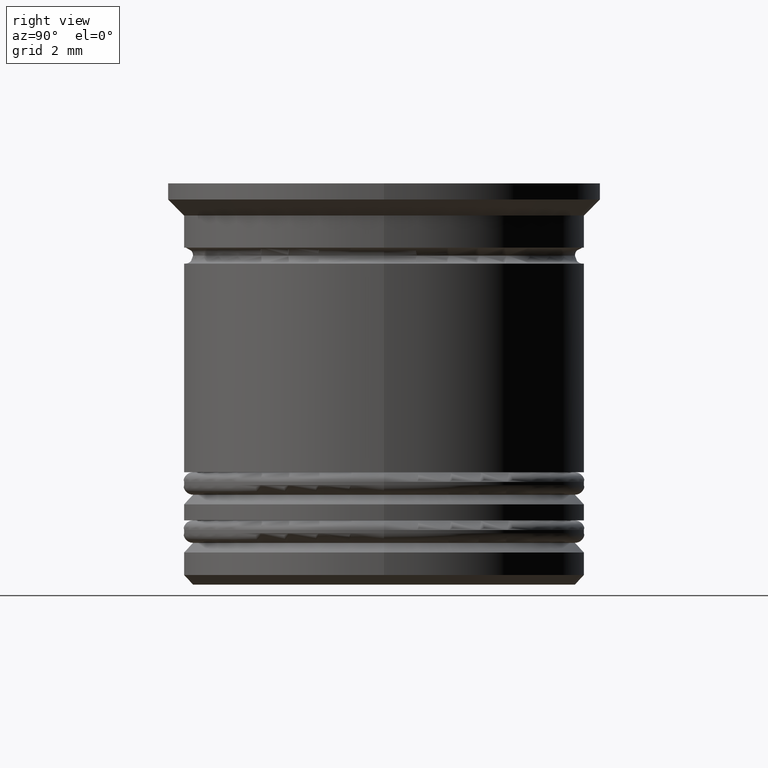
[diagram: clean part render]
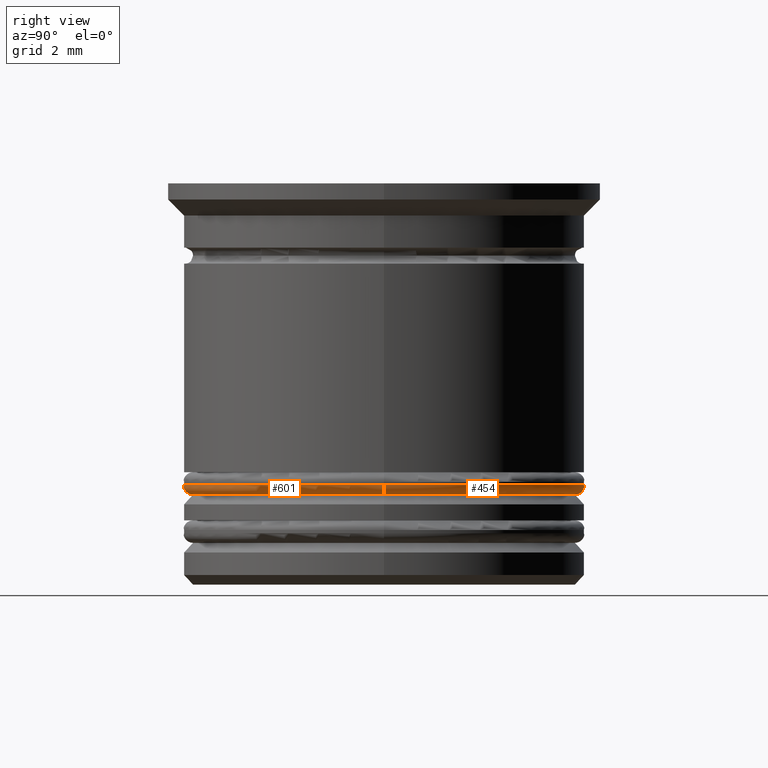
[diagram: same view with one multi-face feature highlighted, each face labeled with its STEP entity id]
A machine part, right view. The highlighted faces form ONE feature: a constant-radius fillet chain: 2 tangent blend faces with common blend radius 0.3 mm. The faces share edges in the B-rep.
Their STEP definitions:
[1] entity #454 (Torus):
#54 = DIRECTION ( 'NONE',  ( 1.224646799147353207E-16, 1.000000000000000000, -0.000000000000000000 ) ) ;
#71 = CIRCLE ( 'NONE', #1828, 6.250000000000000000 ) ;
#198 = CARTESIAN_POINT ( 'NONE',  ( 6.250000000000000000, 0.000000000000000000, -9.400000000000009237 ) ) ;
#226 = CARTESIAN_POINT ( 'NONE',  ( -6.250000000000000000, 7.654042494670957606E-16, -9.400000000000009237 ) ) ;
#230 = CARTESIAN_POINT ( 'NONE',  ( -5.950000000000000178, 7.470345474798855279E-16, -9.700000000000006395 ) ) ;
#352 = CARTESIAN_POINT ( 'NONE',  ( -5.950000000000000178, 7.286648454926751965E-16, -9.400000000000009237 ) ) ;
#356 = DIRECTION ( 'NONE',  ( 1.000000000000000000, 0.000000000000000000, 0.000000000000000000 ) ) ;
#361 = DIRECTION ( 'NONE',  ( 0.000000000000000000, 0.000000000000000000, 1.000000000000000000 ) ) ;
#437 = DIRECTION ( 'NONE',  ( 0.000000000000000000, 0.000000000000000000, -1.000000000000000000 ) ) ;
#454 = ADVANCED_FACE ( 'NONE', ( #1417 ), #1318, .T. ) ;
#480 = EDGE_CURVE ( 'NONE', #1371, #1853, #1410, .T. ) ;
#508 = CARTESIAN_POINT ( 'NONE',  ( 0.000000000000000000, 0.000000000000000000, -9.400000000000009237 ) ) ;
#514 = CARTESIAN_POINT ( 'NONE',  ( 0.000000000000000000, 0.000000000000000000, -9.400000000000009237 ) ) ;
#524 = DIRECTION ( 'NONE',  ( 1.000000000000000000, 0.000000000000000000, 0.000000000000000000 ) ) ;
#608 = ORIENTED_EDGE ( 'NONE', *, *, #1310, .T. ) ;
#719 = EDGE_LOOP ( 'NONE', ( #828, #608, #1069, #1061 ) ) ;
#828 = ORIENTED_EDGE ( 'NONE', *, *, #480, .F. ) ;
#875 = CIRCLE ( 'NONE', #1735, 0.2999999999999999334 ) ;
#968 = DIRECTION ( 'NONE',  ( 1.000000000000000000, 0.000000000000000000, 0.000000000000000000 ) ) ;
#1061 = ORIENTED_EDGE ( 'NONE', *, *, #1391, .F. ) ;
#1069 = ORIENTED_EDGE ( 'NONE', *, *, #1587, .F. ) ;
#1257 = CIRCLE ( 'NONE', #1538, 0.2999999999999999334 ) ;
#1275 = CARTESIAN_POINT ( 'NONE',  ( 0.000000000000000000, 0.000000000000000000, -9.700000000000006395 ) ) ;
#1310 = EDGE_CURVE ( 'NONE', #1371, #1954, #875, .T. ) ;
#1318 = TOROIDAL_SURFACE ( 'NONE', #1823, 5.950000000000000178, 0.2999999999999999889 ) ;
#1371 = VERTEX_POINT ( 'NONE', #230 ) ;
#1391 = EDGE_CURVE ( 'NONE', #1853, #1591, #1257, .T. ) ;
#1410 = CIRCLE ( 'NONE', #1569, 5.950000000000000178 ) ;
#1417 = FACE_OUTER_BOUND ( 'NONE', #719, .T. ) ;
#1538 = AXIS2_PLACEMENT_3D ( 'NONE', #1771, #1934, #437 ) ;
#1550 = DIRECTION ( 'NONE',  ( 0.000000000000000000, 0.000000000000000000, 1.000000000000000000 ) ) ;
#1569 = AXIS2_PLACEMENT_3D ( 'NONE', #1275, #1885, #524 ) ;
#1584 = DIRECTION ( 'NONE',  ( -1.000000000000000000, 1.224646799147353207E-16, 0.000000000000000000 ) ) ;
#1587 = EDGE_CURVE ( 'NONE', #1591, #1954, #71, .T. ) ;
#1591 = VERTEX_POINT ( 'NONE', #198 ) ;
#1735 = AXIS2_PLACEMENT_3D ( 'NONE', #352, #54, #1584 ) ;
#1771 = CARTESIAN_POINT ( 'NONE',  ( 5.950000000000000178, 0.000000000000000000, -9.400000000000009237 ) ) ;
#1823 = AXIS2_PLACEMENT_3D ( 'NONE', #514, #361, #968 ) ;
#1828 = AXIS2_PLACEMENT_3D ( 'NONE', #508, #1550, #356 ) ;
#1853 = VERTEX_POINT ( 'NONE', #1880 ) ;
#1880 = CARTESIAN_POINT ( 'NONE',  ( 5.950000000000000178, 0.000000000000000000, -9.700000000000006395 ) ) ;
#1885 = DIRECTION ( 'NONE',  ( -0.000000000000000000, -0.000000000000000000, -1.000000000000000000 ) ) ;
#1934 = DIRECTION ( 'NONE',  ( 0.000000000000000000, -1.000000000000000000, 0.000000000000000000 ) ) ;
#1954 = VERTEX_POINT ( 'NONE', #226 ) ;
[2] entity #601 (Torus):
#54 = DIRECTION ( 'NONE',  ( 1.224646799147353207E-16, 1.000000000000000000, -0.000000000000000000 ) ) ;
#113 = ORIENTED_EDGE ( 'NONE', *, *, #1602, .F. ) ;
#198 = CARTESIAN_POINT ( 'NONE',  ( 6.250000000000000000, 0.000000000000000000, -9.400000000000009237 ) ) ;
#226 = CARTESIAN_POINT ( 'NONE',  ( -6.250000000000000000, 7.654042494670957606E-16, -9.400000000000009237 ) ) ;
#230 = CARTESIAN_POINT ( 'NONE',  ( -5.950000000000000178, 7.470345474798855279E-16, -9.700000000000006395 ) ) ;
#352 = CARTESIAN_POINT ( 'NONE',  ( -5.950000000000000178, 7.286648454926751965E-16, -9.400000000000009237 ) ) ;
#372 = CIRCLE ( 'NONE', #1293, 6.250000000000000000 ) ;
#437 = DIRECTION ( 'NONE',  ( 0.000000000000000000, 0.000000000000000000, -1.000000000000000000 ) ) ;
#601 = ADVANCED_FACE ( 'NONE', ( #1425 ), #716, .T. ) ;
#644 = DIRECTION ( 'NONE',  ( 0.000000000000000000, 0.000000000000000000, 1.000000000000000000 ) ) ;
#659 = DIRECTION ( 'NONE',  ( 1.000000000000000000, 0.000000000000000000, 0.000000000000000000 ) ) ;
#669 = DIRECTION ( 'NONE',  ( 1.000000000000000000, 0.000000000000000000, 0.000000000000000000 ) ) ;
#716 = TOROIDAL_SURFACE ( 'NONE', #1379, 5.950000000000000178, 0.2999999999999999889 ) ;
#798 = DIRECTION ( 'NONE',  ( 0.000000000000000000, 0.000000000000000000, 1.000000000000000000 ) ) ;
#875 = CIRCLE ( 'NONE', #1735, 0.2999999999999999334 ) ;
#1119 = CARTESIAN_POINT ( 'NONE',  ( 0.000000000000000000, 0.000000000000000000, -9.400000000000009237 ) ) ;
#1223 = AXIS2_PLACEMENT_3D ( 'NONE', #1915, #1314, #1787 ) ;
#1257 = CIRCLE ( 'NONE', #1538, 0.2999999999999999334 ) ;
#1293 = AXIS2_PLACEMENT_3D ( 'NONE', #1119, #798, #669 ) ;
#1310 = EDGE_CURVE ( 'NONE', #1371, #1954, #875, .T. ) ;
#1314 = DIRECTION ( 'NONE',  ( -0.000000000000000000, -0.000000000000000000, -1.000000000000000000 ) ) ;
#1328 = ORIENTED_EDGE ( 'NONE', *, *, #1310, .F. ) ;
#1349 = CIRCLE ( 'NONE', #1223, 5.950000000000000178 ) ;
#1371 = VERTEX_POINT ( 'NONE', #230 ) ;
#1379 = AXIS2_PLACEMENT_3D ( 'NONE', #1871, #644, #659 ) ;
#1391 = EDGE_CURVE ( 'NONE', #1853, #1591, #1257, .T. ) ;
#1425 = FACE_OUTER_BOUND ( 'NONE', #1656, .T. ) ;
#1458 = EDGE_CURVE ( 'NONE', #1853, #1371, #1349, .T. ) ;
#1491 = ORIENTED_EDGE ( 'NONE', *, *, #1391, .T. ) ;
#1538 = AXIS2_PLACEMENT_3D ( 'NONE', #1771, #1934, #437 ) ;
#1584 = DIRECTION ( 'NONE',  ( -1.000000000000000000, 1.224646799147353207E-16, 0.000000000000000000 ) ) ;
#1591 = VERTEX_POINT ( 'NONE', #198 ) ;
#1602 = EDGE_CURVE ( 'NONE', #1954, #1591, #372, .T. ) ;
#1656 = EDGE_LOOP ( 'NONE', ( #1328, #1824, #1491, #113 ) ) ;
#1735 = AXIS2_PLACEMENT_3D ( 'NONE', #352, #54, #1584 ) ;
#1771 = CARTESIAN_POINT ( 'NONE',  ( 5.950000000000000178, 0.000000000000000000, -9.400000000000009237 ) ) ;
#1787 = DIRECTION ( 'NONE',  ( 1.000000000000000000, 0.000000000000000000, 0.000000000000000000 ) ) ;
#1824 = ORIENTED_EDGE ( 'NONE', *, *, #1458, .F. ) ;
#1853 = VERTEX_POINT ( 'NONE', #1880 ) ;
#1871 = CARTESIAN_POINT ( 'NONE',  ( 0.000000000000000000, 0.000000000000000000, -9.400000000000009237 ) ) ;
#1880 = CARTESIAN_POINT ( 'NONE',  ( 5.950000000000000178, 0.000000000000000000, -9.700000000000006395 ) ) ;
#1915 = CARTESIAN_POINT ( 'NONE',  ( 0.000000000000000000, 0.000000000000000000, -9.700000000000006395 ) ) ;
#1934 = DIRECTION ( 'NONE',  ( 0.000000000000000000, -1.000000000000000000, 0.000000000000000000 ) ) ;
#1954 = VERTEX_POINT ( 'NONE', #226 ) ;